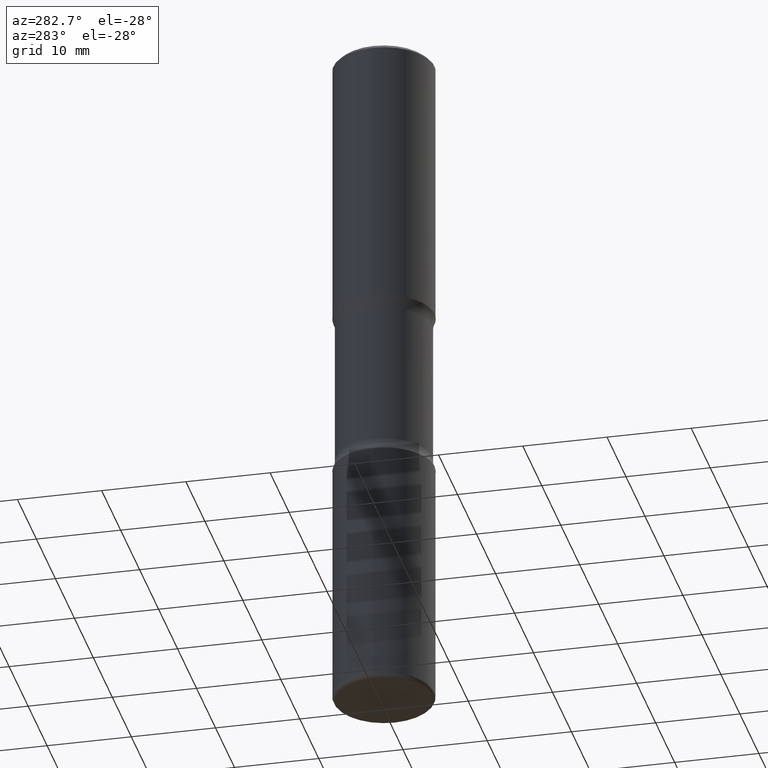
[diagram: clean part render]
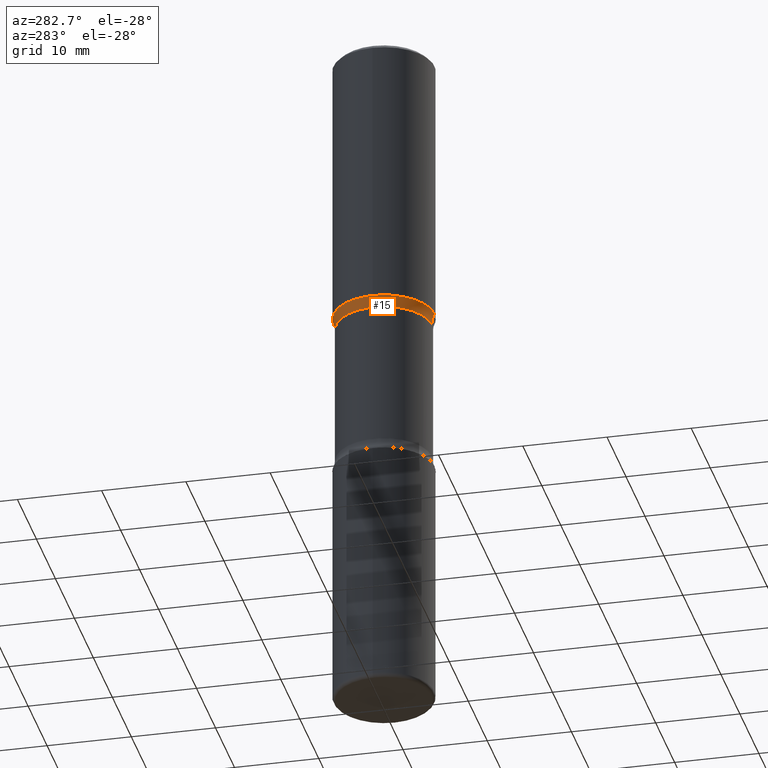
[diagram: same view with one face highlighted and labeled with its STEP entity id]
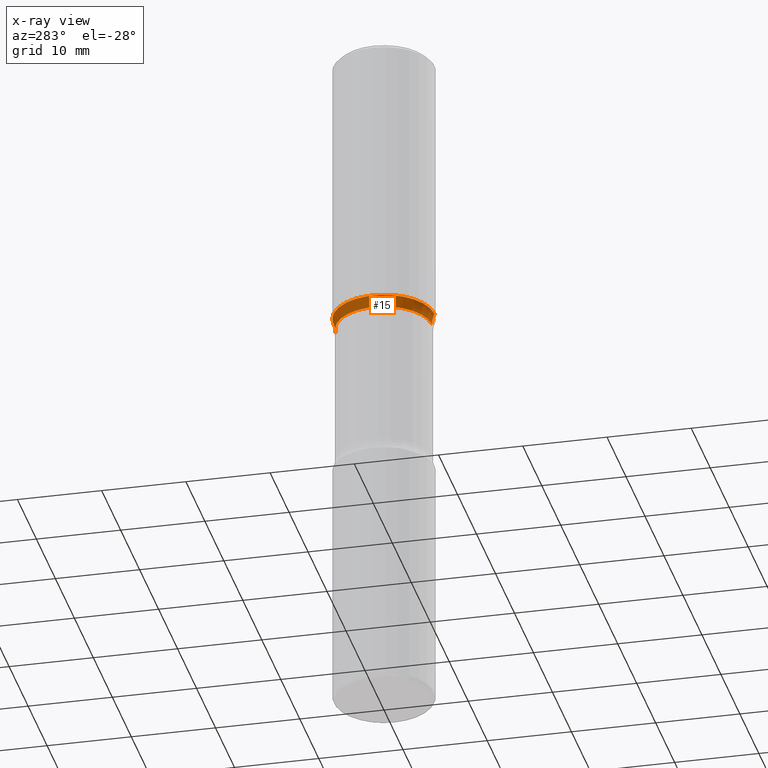
[diagram: x-ray of the same camera — body ghosted, the highlighted face saturated]
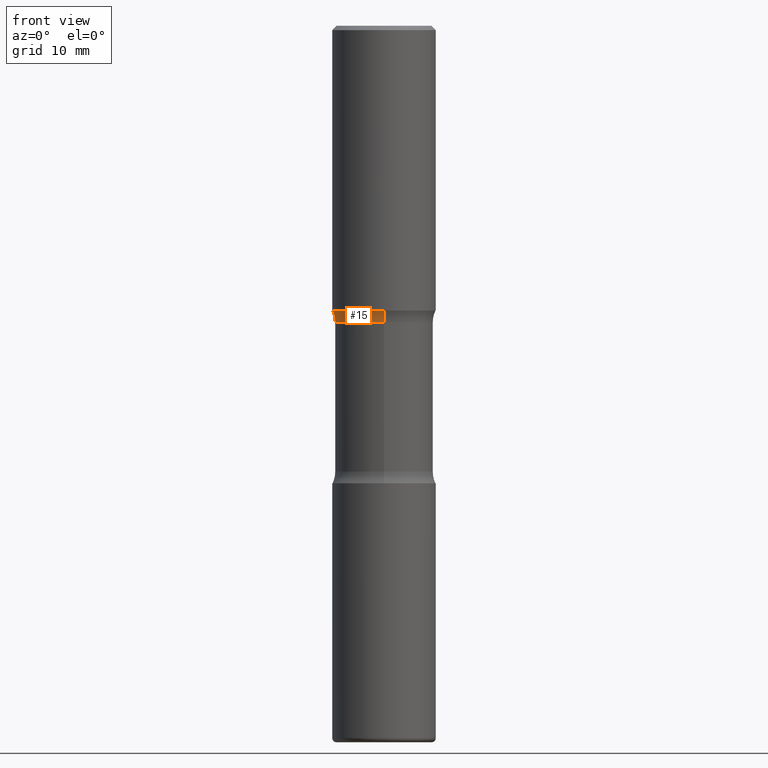
[diagram: same view with one face highlighted and labeled with its STEP entity id]
A machine part, auxiliary view. The second image highlights one B-rep face of the part: STEP entity #15.
The next image is the same camera in x-ray: the body ghosted, the highlighted face saturated — about 0% of this face is hidden behind the body in this view.
A second angle (front view) of the same face is appended — the face is thin or edge-on in the first view.
In plain terms, the highlighted toroidal blend (fillet) surface has major radius 8.8646 mm and minor (blend) radius 3.175 mm.
Its self-contained STEP definition (entity closure, byte-faithful):
#7 = AXIS2_PLACEMENT_3D ( 'NONE', #197, #281, #65 ) ;
#15 = ADVANCED_FACE ( 'NONE', ( #524 ), #218, .F. ) ;
#28 = CARTESIAN_POINT ( 'NONE',  ( 2.437053974512538889E-15, 0.3489999999999951474, -1.353062417324143452 ) ) ;
#39 = CARTESIAN_POINT ( 'NONE',  ( 1.649375784469529460E-15, 0.2361999999999957189, -1.299200000000000799 ) ) ;
#40 = ORIENTED_EDGE ( 'NONE', *, *, #389, .T. ) ;
#50 = CARTESIAN_POINT ( 'NONE',  ( 3.356562915839818253E-29, -4.655895980535632332E-15, -1.353062417324141897 ) ) ;
#64 = CARTESIAN_POINT ( 'NONE',  ( -1.578600589287196671E-15, -0.2240000000000045843, -1.353062417324141231 ) ) ;
#65 = DIRECTION ( 'NONE',  ( 6.982962677686265922E-15, 1.000000000000000000, -3.658724991514639274E-15 ) ) ;
#72 = AXIS2_PLACEMENT_3D ( 'NONE', #28, #419, #238 ) ;
#82 = AXIS2_PLACEMENT_3D ( 'NONE', #50, #440, #150 ) ;
#122 = DIRECTION ( 'NONE',  ( 1.000000000000000000, -6.860497997771530774E-15, 4.839828056240638266E-29 ) ) ;
#131 = DIRECTION ( 'NONE',  ( 2.390112245760045302E-29, -3.570755084071629599E-15, -1.000000000000000000 ) ) ;
#133 = EDGE_CURVE ( 'NONE', #468, #308, #289, .T. ) ;
#134 = ORIENTED_EDGE ( 'NONE', *, *, #174, .F. ) ;
#138 = VERTEX_POINT ( 'NONE', #64 ) ;
#150 = DIRECTION ( 'NONE',  ( 6.982962677686265133E-15, 1.000000000000000000, -3.570755084071629599E-15 ) ) ;
#167 = AXIS2_PLACEMENT_3D ( 'NONE', #375, #122, #208 ) ;
#170 = CARTESIAN_POINT ( 'NONE',  ( -1.620449627073604707E-15, -0.2362000000000046285, -1.299199999999998578 ) ) ;
#174 = EDGE_CURVE ( 'NONE', #138, #468, #521, .T. ) ;
#197 = CARTESIAN_POINT ( 'NONE',  ( 3.349478051907115554E-29, -4.666041908932675177E-15, -1.353062417324141897 ) ) ;
#208 = DIRECTION ( 'NONE',  ( 6.860497997771529985E-15, 1.000000000000000000, 0.000000000000000000 ) ) ;
#218 = TOROIDAL_SURFACE ( 'NONE', #82, 0.3489999999999998104, 0.1249999999999999445 ) ;
#232 = EDGE_CURVE ( 'NONE', #138, #388, #438, .T. ) ;
#238 = DIRECTION ( 'NONE',  ( -6.982962677686265133E-15, -1.000000000000000000, 0.000000000000000000 ) ) ;
#281 = DIRECTION ( 'NONE',  ( 2.390112245760045302E-29, -3.570755084071629599E-15, -1.000000000000000000 ) ) ;
#289 = CIRCLE ( 'NONE', #72, 0.1249999999999999584 ) ;
#308 = VERTEX_POINT ( 'NONE', #39 ) ;
#327 = CARTESIAN_POINT ( 'NONE',  ( 1.564183639801756536E-15, 0.2239999999999952307, -1.353062417324142785 ) ) ;
#375 = CARTESIAN_POINT ( 'NONE',  ( -2.394313801222229291E-15, -0.3490000000000044733, -1.353062417324140565 ) ) ;
#388 = VERTEX_POINT ( 'NONE', #170 ) ;
#389 = EDGE_CURVE ( 'NONE', #388, #308, #462, .T. ) ;
#419 = DIRECTION ( 'NONE',  ( -1.000000000000000000, 6.982962677686265922E-15, -4.883557194083112340E-29 ) ) ;
#436 = ORIENTED_EDGE ( 'NONE', *, *, #133, .F. ) ;
#438 = CIRCLE ( 'NONE', #167, 0.1249999999999999584 ) ;
#440 = DIRECTION ( 'NONE',  ( 2.390112245760045302E-29, -3.570755084071629599E-15, -1.000000000000000000 ) ) ;
#443 = AXIS2_PLACEMENT_3D ( 'NONE', #510, #131, #512 ) ;
#450 = ORIENTED_EDGE ( 'NONE', *, *, #232, .T. ) ;
#462 = CIRCLE ( 'NONE', #443, 0.2362000000000001598 ) ;
#468 = VERTEX_POINT ( 'NONE', #327 ) ;
#478 = EDGE_LOOP ( 'NONE', ( #134, #450, #40, #436 ) ) ;
#510 = CARTESIAN_POINT ( 'NONE',  ( 3.220740828674445240E-29, -4.473712408432105262E-15, -1.299199999999999688 ) ) ;
#512 = DIRECTION ( 'NONE',  ( 6.982962677686265922E-15, 1.000000000000000000, -3.469747663417774636E-15 ) ) ;
#521 = CIRCLE ( 'NONE', #7, 0.2239999999999999214 ) ;
#524 = FACE_OUTER_BOUND ( 'NONE', #478, .T. ) ;